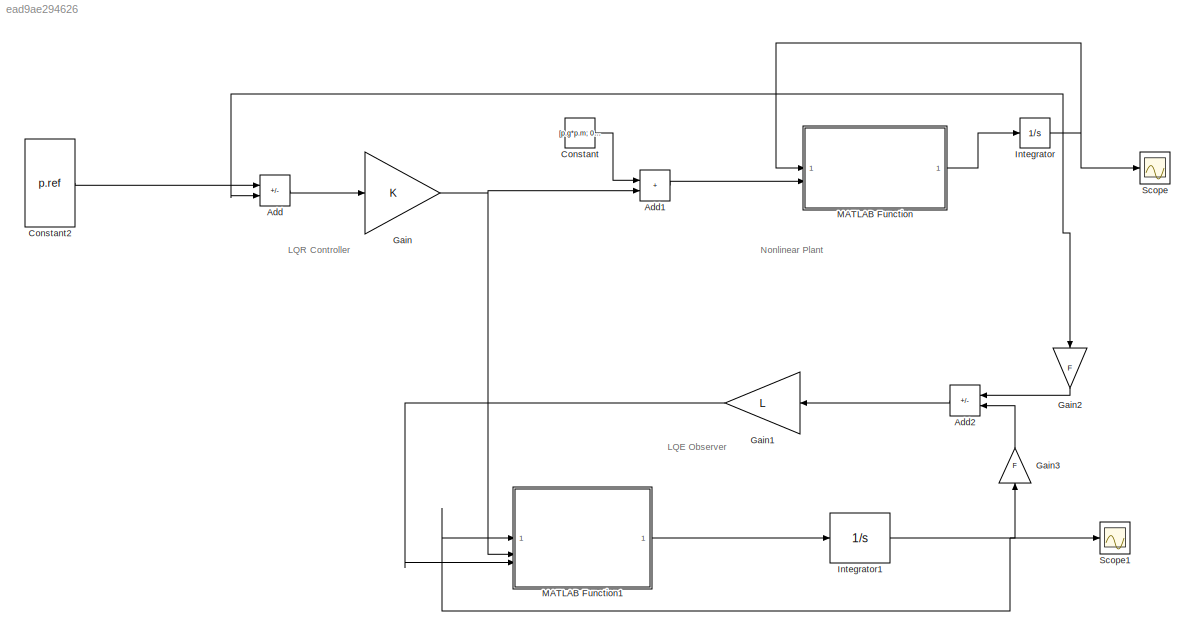
MODEL slx_ead9ae294626
KIND model
CONFIG AbsTol = auto
CONFIG EnableMultiTasking = off
CONFIG FixedStep = auto
CONFIG MaxStep = auto
CONFIG MinStep = auto
CONFIG RelTol = 1e-3
CONFIG SampleTimeConstraint = Unconstrained
CONFIG SolverName = VariableStepAuto
CONFIG StartTime = 0.0
CONFIG StopTime = 100.0
BLOCK [Sum] Add
  IconShape = rectangular
  Inputs = +-
BLOCK [Sum] Add1
  IconShape = rectangular
BLOCK [Sum] Add2
  IconShape = rectangular
  Inputs = +-
  NameLocation = top
BLOCK [Constant] Constant
  Value = [p.g*p.m; 0 ; 0; 0]
BLOCK [Constant] Constant2
  Value = p.ref
BLOCK [Gain] Gain
  Gain = K
  Multiplication = Matrix(K*u)
BLOCK [Gain] Gain1
  Gain = L
  Multiplication = Matrix(K*u)
  NameLocation = top
BLOCK [Gain] Gain2
  Gain = F
  Multiplication = Matrix(K*u)
  NameLocation = left
BLOCK [Gain] Gain3
  Gain = F
  Multiplication = Matrix(K*u)
  NameLocation = right
BLOCK [Integrator] Integrator
  InitialCondition = [0;0;0;0;0;0;0;0;0;0;0;0]
BLOCK [Integrator] Integrator1
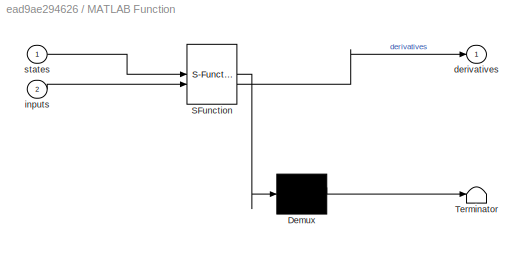
BLOCK [SubSystem] MATLAB Function
  ErrorFcn = Stateflow.Translate.translate
  PermitHierarchicalResolution = ExplicitOnly
  SFBlockType = MATLAB Function
  TreatAsAtomicUnit = on
BLOCK [Demux] MATLAB Function/ Demux 
  Outputs = 1
BLOCK [S-Function] MATLAB Function/ SFunction 
  EnableBusSupport = off
  FunctionName = sf_sfun
  Parameters = p
  PortCounts = [2 2]
  SFcnIsStateOwnerBlock = off
  SFunctionDeploymentMode = off
  Tag = Stateflow S-Function 3
BLOCK [Terminator] MATLAB Function/ Terminator 
BLOCK [Outport] MATLAB Function/derivatives
BLOCK [Inport] MATLAB Function/inputs
  Port = 2
BLOCK [Inport] MATLAB Function/states
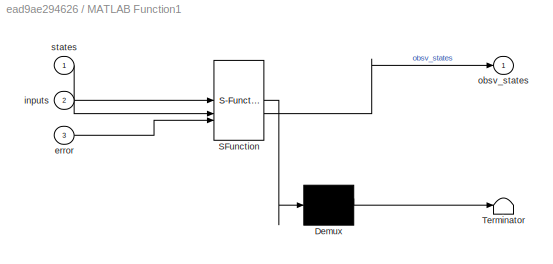
BLOCK [SubSystem] MATLAB Function1
  ErrorFcn = Stateflow.Translate.translate
  PermitHierarchicalResolution = ExplicitOnly
  SFBlockType = MATLAB Function
  TreatAsAtomicUnit = on
BLOCK [Demux] MATLAB Function1/ Demux 
  Outputs = 1
BLOCK [S-Function] MATLAB Function1/ SFunction 
  EnableBusSupport = off
  FunctionName = sf_sfun
  Parameters = p
  PortCounts = [3 2]
  SFcnIsStateOwnerBlock = off
  SFunctionDeploymentMode = off
  Tag = Stateflow S-Function 2
BLOCK [Terminator] MATLAB Function1/ Terminator 
BLOCK [Inport] MATLAB Function1/error
  Port = 3
BLOCK [Inport] MATLAB Function1/inputs
  Port = 2
BLOCK [Outport] MATLAB Function1/obsv_states
BLOCK [Inport] MATLAB Function1/states
BLOCK [Scope] Scope
  ActiveDisplayYMaximum = 20.948446100131591
  ActiveDisplayYMinimum = -2.9166662979596856
  Floating = off
  GraphicalSettings = {"Style":{"BackgroundColor":[0.12941176470588237,0.12941176470588237,0.12941176470588237],"AxesColor":[0.07058823529411765,0.07058823529411765,0.07058823529411765],"LabelsColor":[0.8509803921568627,0.8509803921568627,0.8509803921568627],"PreserveColors":false,"Visible":[true,true,true,true,true,true,true,true,true,true,true,true],"LineStyle":["-","-","-","-","-","-","-","-","-","-","-","-"],"LineW...<+3527ch>
  MultipleDisplayCache = [{"MaxYLimMag":11.714719016294206,"MaxYLimReal":20.948446100131591,"MinYLimMag":0,"MinYLimReal":-2.9166662979596856,"PlotAsMagnitudePhase":false,"ShowGrid":true,"ShowLegend":true,"Title":"%<SignalLabel>","YLabel":""}]
  NumInputPorts = 1
  ScopeFrameLocation = window
  ShowLegend = on
  WasSavedAsWebScope = on
  WindowPosition = [0.000000,36.000000,1536.000000,793.000000,]
BLOCK [Scope] Scope1
  ActiveDisplayYMaximum = 18.693355838305333
  ActiveDisplayYMinimum = -4.28488549527432
  DataLoggingVariableName = ScopeData1
  Floating = off
  GraphicalSettings = {"Style":{"BackgroundColor":[0.12941176470588237,0.12941176470588237,0.12941176470588237],"AxesColor":[0.07058823529411765,0.07058823529411765,0.07058823529411765],"LabelsColor":[0.8509803921568627,0.8509803921568627,0.8509803921568627],"PreserveColors":false,"Visible":[true,true,true,true,true,true,true,true,true,true,true,true],"LineStyle":["-","-","-","-","-","-","-","-","-","-","-","-"],"LineW...<+3549ch>
  MultipleDisplayCache = [{"MaxYLimMag":11.714300250145726,"MaxYLimReal":18.693355838305333,"MinYLimMag":0,"MinYLimReal":-4.28488549527432,"PlotAsMagnitudePhase":false,"ShowGrid":true,"ShowLegend":true,"Title":"%<SignalLabel>","YLabel":""}]
  NumInputPorts = 1
  ScopeFrameLocation = window
  ShowLegend = on
  WasSavedAsWebScope = on
  WindowPosition = [0.000000,36.000000,1536.000000,793.000000,]
ANNOTATION (root): LQE Observer
ANNOTATION (root): LQR Controller
ANNOTATION (root): Nonlinear Plant
LINE Add1:1 -> MATLAB Function:2
LINE Add2:1 -> Gain1:1
LINE Add:1 -> Gain:1
LINE Constant2:1 -> Add:1
LINE Constant:1 -> Add1:1
LINE Gain1:1 -> MATLAB Function1:3
LINE Gain2:1 -> Add2:1
LINE Gain3:1 -> Add2:2
NET Gain:1 -> Add1:2, MATLAB Function1:2
NET Integrator1:1 -> Gain3:1, MATLAB Function1:1, Scope1:1
NET Integrator:1 -> Add:2, Gain2:1, MATLAB Function:1, Scope:1
LINE MATLAB Function1:1 -> Integrator1:1
LINE MATLAB Function:1 -> Integrator:1
note: NET lines group one-source signal fan-out (src -> all destinations, sorted); 1:1 wires keep LINE
CHART MATLAB Function1 states=1 transitions=1
  STATE_LABEL 'eML_blk_kernel()'
  STATE_LABEL 'SCRIPT:\nfunction obsv_states   = observer_lin(states, inputs, error, p)\n\n\nobsv_states = p.A_lin*states + p.B_lin*inputs + error;\n'
CHART MATLAB Function states=1 transitions=1
  STATE_LABEL 'eML_blk_kernel()'
  STATE_LABEL 'SCRIPT:\nfunction derivatives = fcn(states, inputs, p)\n\n % I is the inertia matrix\n    I = [p.Ixx 0 0;\n         0 p.Iyy 0;\n         0 0 p.Izz];\n\n    xi= states(1:3); % x, y, z\n    xid = states(4:6); %x_prime, y_prime, z_prime\n    eta = states(7:9); % roll, pitch, yaw\n    etad = states(10:12); % roll_prime, pitch_prime, yaw_prime\n\n    % Cosines of each\n    c_roll = cos(eta(1));\n    c_pitch = cos(eta...<+1233ch>'
CHART  states=0 transitions=0
CHART  states=0 transitions=0
